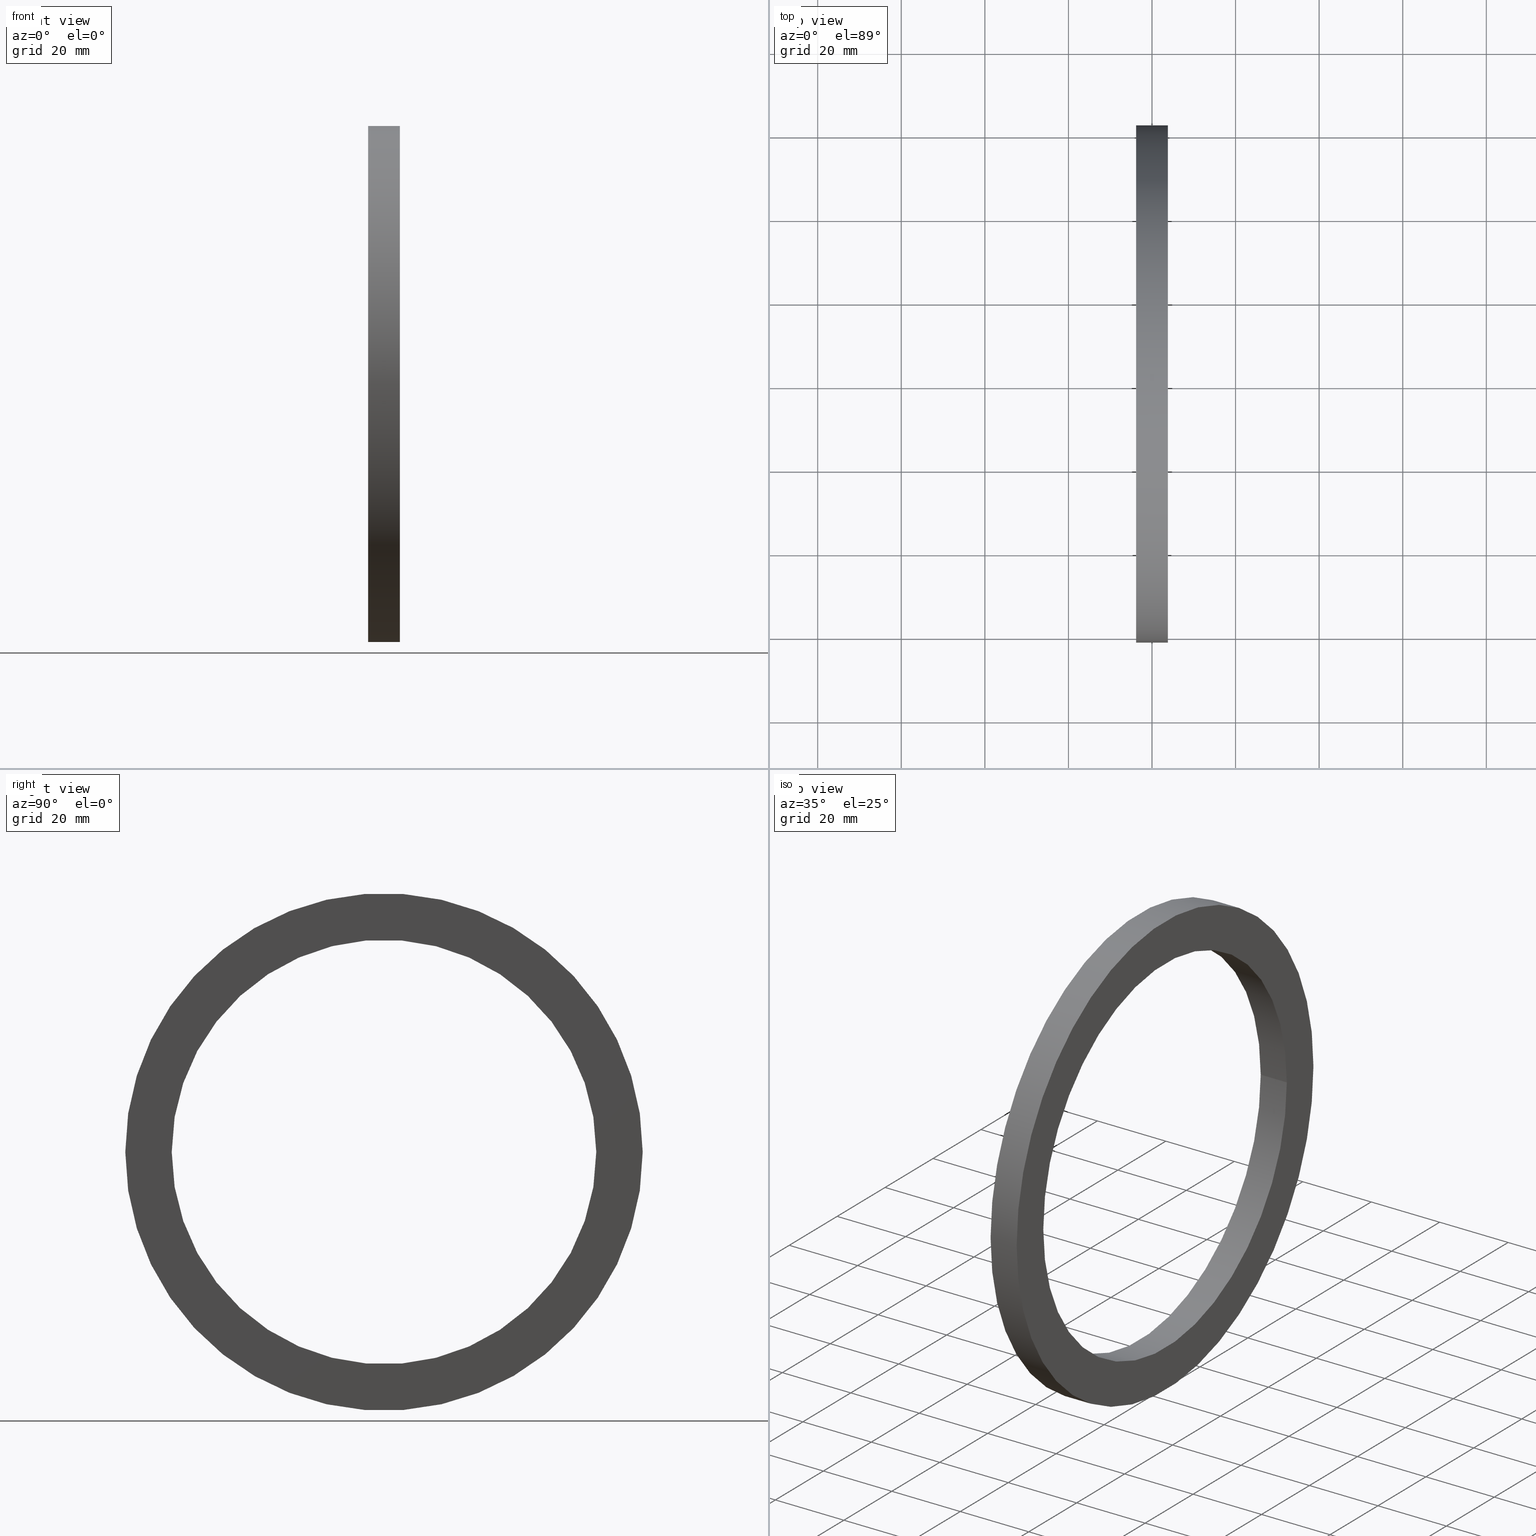
[diagram: canonical four-view strip — front | top / right | iso, engineering-drawing reading convention]
A machine part, canonical four-view strip (front | top / right | iso — engineering-drawing reading convention). The complete STEP part file that produces these views, byte-faithful:
ISO-10303-21;
HEADER;
/* Generated by software containing ST-Developer
 * from STEP Tools, Inc. (www.steptools.com) 
 */

FILE_DESCRIPTION(
/* description */ ('COUPLING GASKET, EXTRA THICK'),
/* implementation_level */ '2;1');

FILE_NAME(
/* name */ 'E:\\1-3D\\STEP\\400GXT.stp',
/* time_stamp */ '2016-12-02T14:20:29-05:00',
/* author */ ('MJC'),
/* organization */ (''),
/* preprocessor_version */ 'ST-DEVELOPER v16.5',
/* originating_system */ 'Autodesk Inventor 2017',
/* authorisation */ '');

FILE_SCHEMA (('AUTOMOTIVE_DESIGN { 1 0 10303 214 3 1 1 }'));
ENDSEC;

DATA;
#10=MECHANICAL_DESIGN_GEOMETRIC_PRESENTATION_REPRESENTATION('',(#13),#109);
#11=SHAPE_REPRESENTATION_RELATIONSHIP('SRR','None',#121,#12);
#12=ADVANCED_BREP_SHAPE_REPRESENTATION('',(#14),#108);
#13=STYLED_ITEM('',(#130),#14);
#14=MANIFOLD_SOLID_BREP('Solid1',#59);
#15=PLANE('',#70);
#16=PLANE('',#74);
#17=FACE_BOUND('',#26,.T.);
#18=FACE_BOUND('',#28,.T.);
#19=FACE_BOUND('',#30,.T.);
#20=FACE_BOUND('',#32,.T.);
#21=FACE_OUTER_BOUND('',#25,.T.);
#22=FACE_OUTER_BOUND('',#27,.T.);
#23=FACE_OUTER_BOUND('',#29,.T.);
#24=FACE_OUTER_BOUND('',#31,.T.);
#25=EDGE_LOOP('',(#45));
#26=EDGE_LOOP('',(#46));
#27=EDGE_LOOP('',(#47));
#28=EDGE_LOOP('',(#48));
#29=EDGE_LOOP('',(#49));
#30=EDGE_LOOP('',(#50));
#31=EDGE_LOOP('',(#51));
#32=EDGE_LOOP('',(#52));
#33=CIRCLE('',#68,2.4375);
#34=CIRCLE('',#69,2.4375);
#35=CIRCLE('',#71,2.);
#36=CIRCLE('',#73,2.);
#37=VERTEX_POINT('',#95);
#38=VERTEX_POINT('',#97);
#39=VERTEX_POINT('',#100);
#40=VERTEX_POINT('',#103);
#41=EDGE_CURVE('',#37,#37,#33,.T.);
#42=EDGE_CURVE('',#38,#38,#34,.T.);
#43=EDGE_CURVE('',#39,#39,#35,.T.);
#44=EDGE_CURVE('',#40,#40,#36,.T.);
#45=ORIENTED_EDGE('',*,*,#41,.F.);
#46=ORIENTED_EDGE('',*,*,#42,.T.);
#47=ORIENTED_EDGE('',*,*,#41,.T.);
#48=ORIENTED_EDGE('',*,*,#43,.F.);
#49=ORIENTED_EDGE('',*,*,#44,.F.);
#50=ORIENTED_EDGE('',*,*,#43,.T.);
#51=ORIENTED_EDGE('',*,*,#42,.F.);
#52=ORIENTED_EDGE('',*,*,#44,.T.);
#53=CYLINDRICAL_SURFACE('',#67,2.4375);
#54=CYLINDRICAL_SURFACE('',#72,2.);
#55=ADVANCED_FACE('',(#21,#17),#53,.T.);
#56=ADVANCED_FACE('',(#22,#18),#15,.T.);
#57=ADVANCED_FACE('',(#23,#19),#54,.F.);
#58=ADVANCED_FACE('',(#24,#20),#16,.T.);
#59=CLOSED_SHELL('',(#55,#56,#57,#58));
#60=DATE_TIME_ROLE('creation_date');
#61=APPLIED_DATE_AND_TIME_ASSIGNMENT(#62,#60,(#123));
#62=DATE_AND_TIME(#63,#64);
#63=CALENDAR_DATE(2013,26,8);
#64=LOCAL_TIME(12,16,56.,#65);
#65=COORDINATED_UNIVERSAL_TIME_OFFSET(0,0,.BEHIND.);
#66=AXIS2_PLACEMENT_3D('placement',#93,#75,#76);
#67=AXIS2_PLACEMENT_3D('',#94,#77,#78);
#68=AXIS2_PLACEMENT_3D('',#96,#79,#80);
#69=AXIS2_PLACEMENT_3D('',#98,#81,#82);
#70=AXIS2_PLACEMENT_3D('',#99,#83,#84);
#71=AXIS2_PLACEMENT_3D('',#101,#85,#86);
#72=AXIS2_PLACEMENT_3D('',#102,#87,#88);
#73=AXIS2_PLACEMENT_3D('',#104,#89,#90);
#74=AXIS2_PLACEMENT_3D('',#105,#91,#92);
#75=DIRECTION('axis',(0.,0.,1.));
#76=DIRECTION('refdir',(1.,0.,0.));
#77=DIRECTION('center_axis',(1.,0.,0.));
#78=DIRECTION('ref_axis',(0.,1.,0.));
#79=DIRECTION('center_axis',(1.,0.,0.));
#80=DIRECTION('ref_axis',(0.,1.,0.));
#81=DIRECTION('center_axis',(1.,0.,0.));
#82=DIRECTION('ref_axis',(0.,1.,0.));
#83=DIRECTION('center_axis',(1.,0.,0.));
#84=DIRECTION('ref_axis',(0.,0.,-1.));
#85=DIRECTION('center_axis',(1.,0.,0.));
#86=DIRECTION('ref_axis',(0.,1.,0.));
#87=DIRECTION('center_axis',(1.,0.,0.));
#88=DIRECTION('ref_axis',(0.,1.,0.));
#89=DIRECTION('center_axis',(1.,0.,0.));
#90=DIRECTION('ref_axis',(0.,1.,0.));
#91=DIRECTION('center_axis',(-1.,0.,0.));
#92=DIRECTION('ref_axis',(0.,0.,1.));
#93=CARTESIAN_POINT('',(0.,0.,0.));
#94=CARTESIAN_POINT('Origin',(0.,0.,0.));
#95=CARTESIAN_POINT('',(0.15,2.4375,0.));
#96=CARTESIAN_POINT('Origin',(0.15,0.,0.));
#97=CARTESIAN_POINT('',(-0.15,2.4375,0.));
#98=CARTESIAN_POINT('Origin',(-0.15,0.,0.));
#99=CARTESIAN_POINT('Origin',(0.15,2.21875,0.));
#100=CARTESIAN_POINT('',(0.15,2.,0.));
#101=CARTESIAN_POINT('Origin',(0.15,0.,0.));
#102=CARTESIAN_POINT('Origin',(0.,0.,0.));
#103=CARTESIAN_POINT('',(-0.15,2.,0.));
#104=CARTESIAN_POINT('Origin',(-0.15,0.,0.));
#105=CARTESIAN_POINT('Origin',(-0.15,2.21875,0.));
#106=UNCERTAINTY_MEASURE_WITH_UNIT(LENGTH_MEASURE(0.000393700787401575),
#110,'DISTANCE_ACCURACY_VALUE',
'Maximum model space distance between geometric entities at asserted c
onnectivities');
#107=UNCERTAINTY_MEASURE_WITH_UNIT(LENGTH_MEASURE(1.E-6),#111,
'DISTANCE_ACCURACY_VALUE',
'Maximum model space distance between geometric entities at asserted c
onnectivities');
#108=(
GEOMETRIC_REPRESENTATION_CONTEXT(3)
GLOBAL_UNCERTAINTY_ASSIGNED_CONTEXT((#106))
GLOBAL_UNIT_ASSIGNED_CONTEXT((#110,#116,#113))
REPRESENTATION_CONTEXT('','3D')
);
#109=(
GEOMETRIC_REPRESENTATION_CONTEXT(3)
GLOBAL_UNCERTAINTY_ASSIGNED_CONTEXT((#107))
GLOBAL_UNIT_ASSIGNED_CONTEXT((#111,#116,#113))
REPRESENTATION_CONTEXT('','3D')
);
#110=(
CONVERSION_BASED_UNIT('__CONSTANT UNIT inch',#112)
LENGTH_UNIT()
NAMED_UNIT(#115)
);
#111=(
LENGTH_UNIT()
NAMED_UNIT(*)
SI_UNIT(.MILLI.,.METRE.)
);
#112=LENGTH_MEASURE_WITH_UNIT(LENGTH_MEASURE(25.4),#111);
#113=(
NAMED_UNIT(*)
SI_UNIT($,.STERADIAN.)
SOLID_ANGLE_UNIT()
);
#114=DIMENSIONAL_EXPONENTS(0.,0.,0.,0.,0.,0.,0.);
#115=DIMENSIONAL_EXPONENTS(1.,0.,0.,0.,0.,0.,0.);
#116=(
CONVERSION_BASED_UNIT('degree',#118)
NAMED_UNIT(#114)
PLANE_ANGLE_UNIT()
);
#117=(
NAMED_UNIT(*)
PLANE_ANGLE_UNIT()
SI_UNIT($,.RADIAN.)
);
#118=PLANE_ANGLE_MEASURE_WITH_UNIT(PLANE_ANGLE_MEASURE(0.01745329252),#117);
#119=SHAPE_DEFINITION_REPRESENTATION(#120,#121);
#120=PRODUCT_DEFINITION_SHAPE('',$,#123);
#121=SHAPE_REPRESENTATION('',(#66),#108);
#122=PRODUCT_DEFINITION_CONTEXT('part definition',#127,'design');
#123=PRODUCT_DEFINITION('400GXT','400GXT',#124,#122);
#124=PRODUCT_DEFINITION_FORMATION('',$,#129);
#125=PRODUCT_RELATED_PRODUCT_CATEGORY('400GXT','400GXT',(#129));
#126=APPLICATION_PROTOCOL_DEFINITION('international standard',
'automotive_design',2009,#127);
#127=APPLICATION_CONTEXT(
'Core Data for Automotive Mechanical Design Process');
#128=PRODUCT_CONTEXT('part definition',#127,'mechanical');
#129=PRODUCT('400GXT','400GXT','COUPLING GASKET, EXTRA THICK',(#128));
#130=PRESENTATION_STYLE_ASSIGNMENT((#131));
#131=SURFACE_STYLE_USAGE(.BOTH.,#132);
#132=SURFACE_SIDE_STYLE('',(#133));
#133=SURFACE_STYLE_FILL_AREA(#134);
#134=FILL_AREA_STYLE('',(#135));
#135=FILL_AREA_STYLE_COLOUR('',#136);
#136=COLOUR_RGB('',0.309803921568627,0.309803921568627,0.309803921568627);
ENDSEC;
END-ISO-10303-21;
